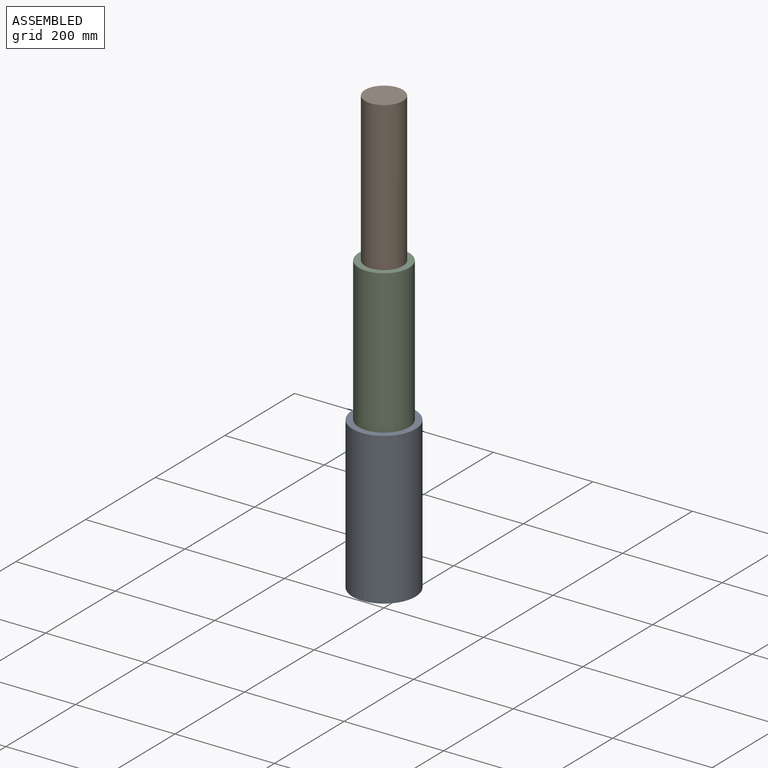
[diagram: assembled view]
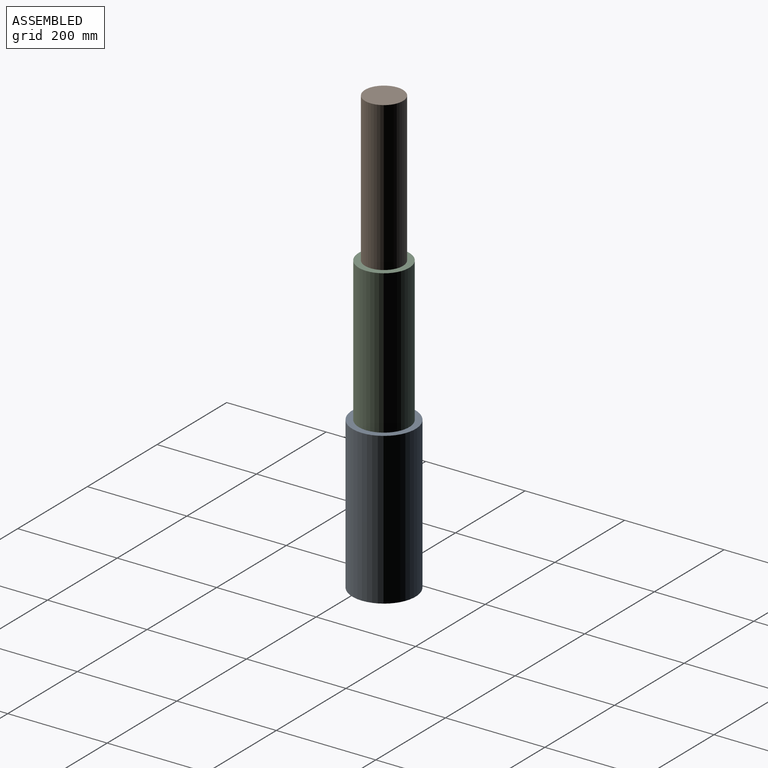
[diagram: assembled view, second angle]
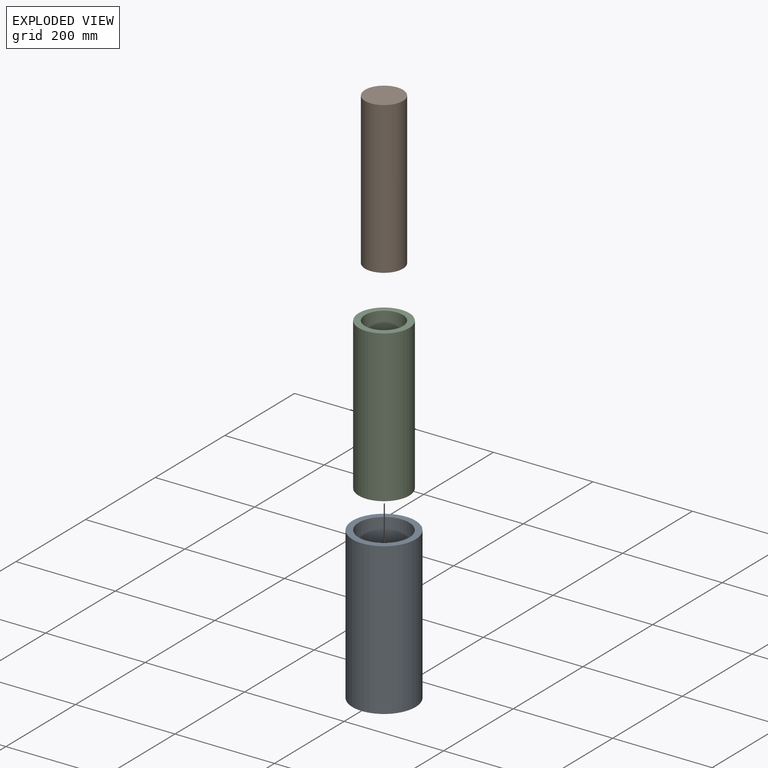
[diagram: exploded view]
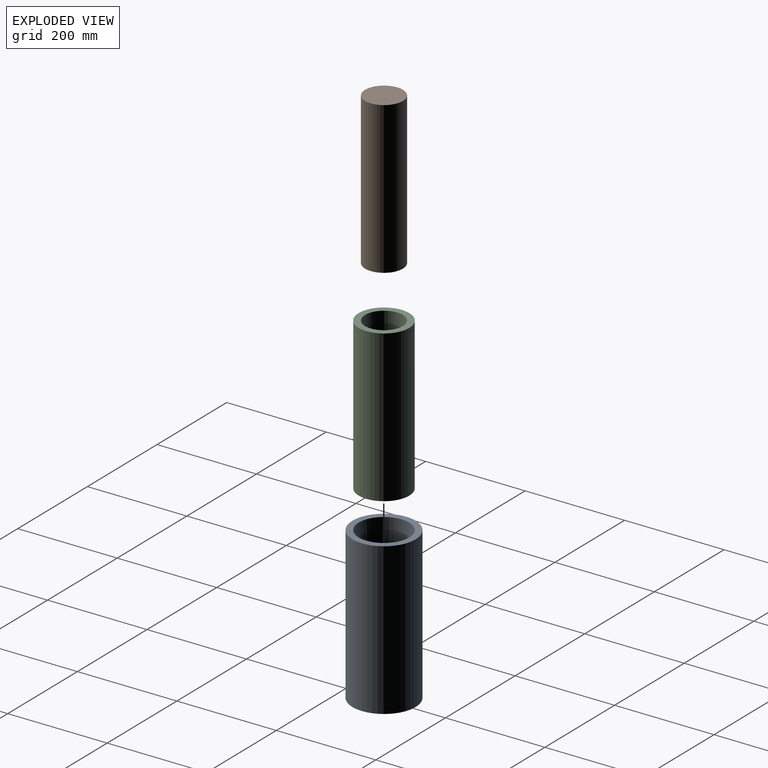
[diagram: exploded view, second angle]
ASSEMBLY  parts=3 mates=2
PART A: 4 faces, bbox 127x127x304.8 mm
  f0: cylinder r=63.5mm len=304.8mm, axis (0,0,-1), area 121609.8mm2, adj f1,f2
  f1: plane 127x127mm, normal (0,0,1), area 4560.4mm2, adj f0,f3
  f2: plane 127x127mm, normal (0,0,-1), area 4560.4mm2, adj f0,f3
  f3: cylinder r=50.8mm len=304.8mm, axis (0,0,1), area 97287.8mm2, adj f1,f2
PART B: 3 faces, bbox 76.2x76.2x304.8 mm
  f0: cylinder r=38.1mm len=304.8mm, axis (0,0,-1), area 72965.9mm2, adj f1,f2
  f1: plane 76.2x76.2mm, normal (0,0,1), area 4560.4mm2, adj f0
  f2: plane 76.2x76.2mm, normal (0,0,-1), area 4560.4mm2, adj f0
PART C: 4 faces, bbox 101.6x101.6x304.8 mm
  f0: cylinder r=50.8mm len=304.8mm, axis (0,0,-1), area 97287.8mm2, adj f1,f2
  f1: plane 101.6x101.6mm, normal (0,0,1), area 3547mm2, adj f0,f3
  f2: plane 101.6x101.6mm, normal (0,0,-1), area 3547mm2, adj f0,f3
  f3: cylinder r=38.1mm len=304.8mm, axis (0,0,1), area 72965.9mm2, adj f1,f2
PLACE A t=(-182.11,89.08,78.29)mm
PLACE B t=(-182.11,89.08,667.57)mm
PLACE C rot(axis=(1,0,0),180deg) t=(-182.11,89.08,672.65)mm
MATE slider B.f0 <-> C.f3  axis (0,0,-1) through (-182.11,89.08,819.97)mm
MATE slider C.f0 <-> A.f3  axis (0,0,1) through (-182.11,89.08,520.25)mm
